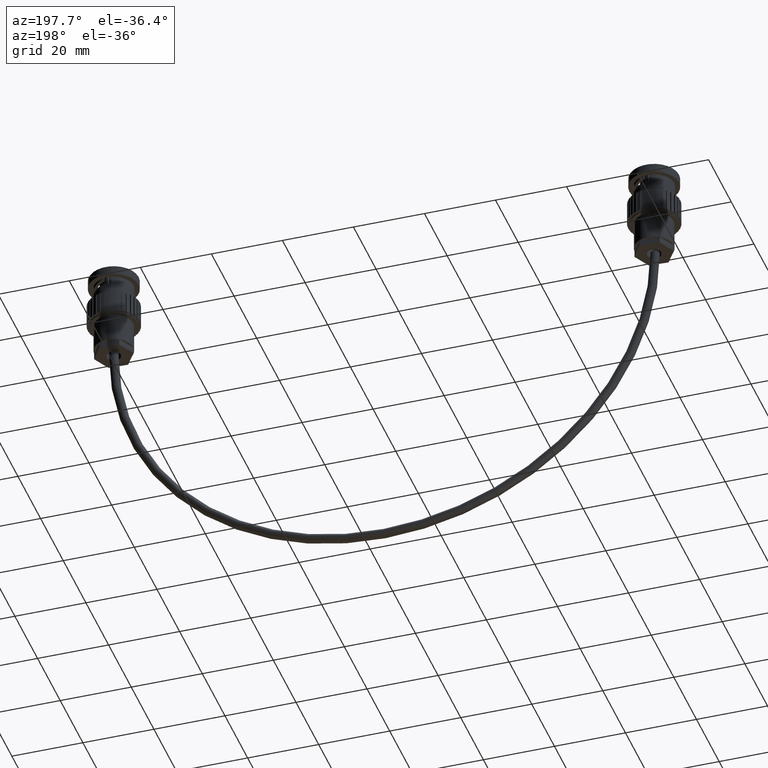
[diagram: clean part render]
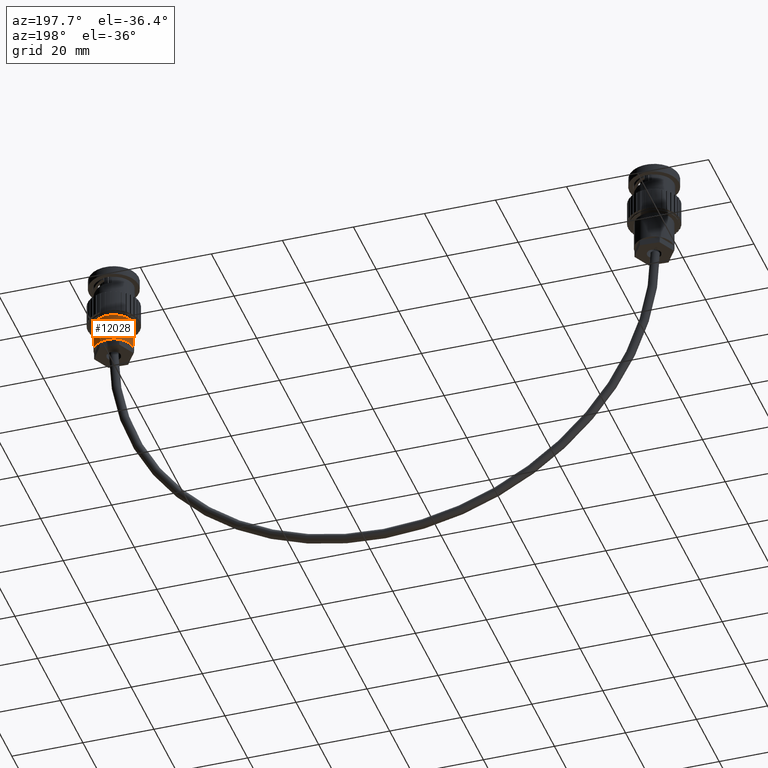
[diagram: same view with one face highlighted and labeled with its STEP entity id]
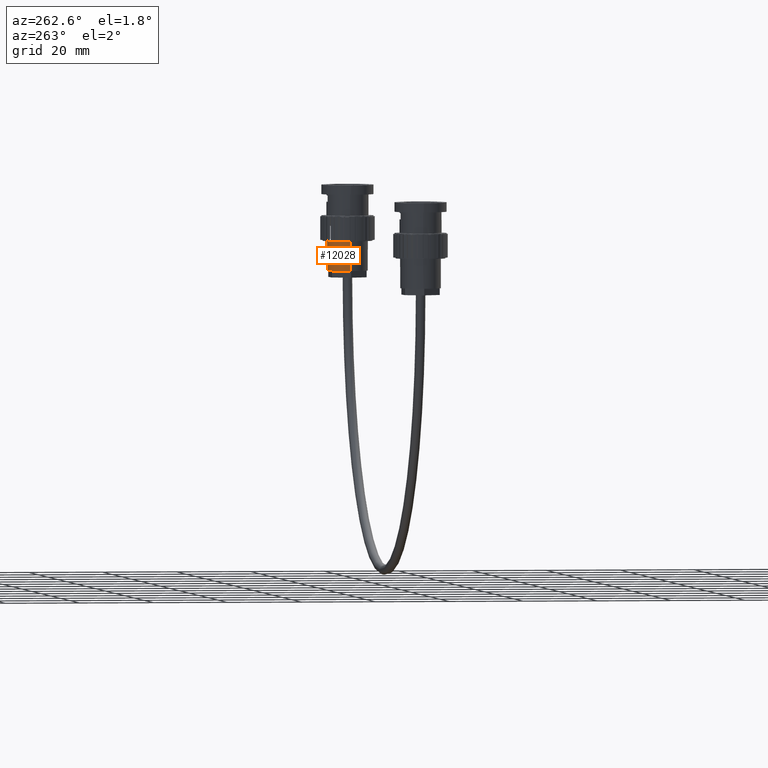
[diagram: same view with one face highlighted and labeled with its STEP entity id]
A machine part, auxiliary view. The second image highlights one B-rep face of the part: STEP entity #12028.
A second angle (auxiliary view) of the same face is appended — the face is thin or edge-on in the first view.
In plain terms, the highlighted cylindrical surface (edge-blend (fillet) strip) has radius 5.461 mm, axis along (-0, -0, 1).
Its self-contained STEP definition (entity closure, byte-faithful):
#1075 = ORIENTED_EDGE ( 'NONE', *, *, #12566, .T. ) ;
#1076 = ORIENTED_EDGE ( 'NONE', *, *, #12567, .T. ) ;
#1077 = ORIENTED_EDGE ( 'NONE', *, *, #12568, .F. ) ;
#1078 = ORIENTED_EDGE ( 'NONE', *, *, #12569, .F. ) ;
#1079 = ORIENTED_EDGE ( 'NONE', *, *, #12570, .T. ) ;
#1080 = ORIENTED_EDGE ( 'NONE', *, *, #12571, .T. ) ;
#1081 = ORIENTED_EDGE ( 'NONE', *, *, #12572, .T. ) ;
#2318 = AXIS2_PLACEMENT_3D ( 'NONE', #16121, #16122, #16123 ) ;
#2322 = AXIS2_PLACEMENT_3D ( 'NONE', #16124, #16125, #16126 ) ;
#2323 = AXIS2_PLACEMENT_3D ( 'NONE', #16127, #16128, #16129 ) ;
#2324 = AXIS2_PLACEMENT_3D ( 'NONE', #16131, #16132, #16133 ) ;
#2325 = AXIS2_PLACEMENT_3D ( 'NONE', #16135, #16136, #16137 ) ;
#4045 = EDGE_LOOP ( 'NONE', ( #1075, #1076, #1077, #1078, #1079, #1080, #1081 ) ) ;
#5290 = CARTESIAN_POINT ( 'NONE',  ( 6.205136485393062200, 0.0000000000000000000, -0.9079046006083559800 ) ) ;
#5307 = CARTESIAN_POINT ( 'NONE',  ( 5.775136485393062500, 2.632990618166812200E-017, -0.9079046006083559800 ) ) ;
#5391 = CARTESIAN_POINT ( 'NONE',  ( 5.775136485393062500, 2.632990618166812200E-017, -0.5929046006083559300 ) ) ;
#5393 = CARTESIAN_POINT ( 'NONE',  ( 6.204834602384025300, 0.01138940562694254100, -0.9079046006083559800 ) ) ;
#5394 = CARTESIAN_POINT ( 'NONE',  ( 6.087622029281605200, 0.1916287262723281300, -0.9079046006083559800 ) ) ;
#5470 = CARTESIAN_POINT ( 'NONE',  ( 6.205136485393062200, 0.0000000000000000000, -0.5929046006083559300 ) ) ;
#5489 = CARTESIAN_POINT ( 'NONE',  ( 5.872923912290643100, 0.1802393206453856400, -0.9079046006083559800 ) ) ;
#8587 = FACE_OUTER_BOUND ( 'NONE', #4045, .T. ) ;
#8591 = CYLINDRICAL_SURFACE ( 'NONE', #9110, 0.2149999999999997500 ) ;
#9110 = AXIS2_PLACEMENT_3D ( 'NONE', #10968, #10964, #10953 ) ;
#10953 = DIRECTION ( 'NONE',  ( 1.000000000000000000, 0.0000000000000000000, 0.0000000000000000000 ) ) ;
#10964 = DIRECTION ( 'NONE',  ( -0.0000000000000000000, -0.0000000000000000000, 1.000000000000000000 ) ) ;
#10968 = CARTESIAN_POINT ( 'NONE',  ( 5.990136485393062300, 0.0000000000000000000, 0.0000000000000000000 ) ) ;
#12028 = ADVANCED_FACE ( 'NONE', ( #8587 ), #8591, .T. ) ;
#12566 = EDGE_CURVE ( 'NONE', #17213, #17031, #14393, .T. ) ;
#12567 = EDGE_CURVE ( 'NONE', #17031, #17115, #14398, .T. ) ;
#12568 = EDGE_CURVE ( 'NONE', #17194, #17115, #14403, .T. ) ;
#12569 = EDGE_CURVE ( 'NONE', #17014, #17194, #14405, .T. ) ;
#12570 = EDGE_CURVE ( 'NONE', #17014, #17117, #14406, .T. ) ;
#12571 = EDGE_CURVE ( 'NONE', #17117, #17118, #14408, .T. ) ;
#12572 = EDGE_CURVE ( 'NONE', #17118, #17213, #14409, .T. ) ;
#14393 = CIRCLE ( 'NONE', #2318, 0.2149999999999997500 ) ;
#14398 = LINE ( 'NONE', #16120, #14404 ) ;
#14403 = CIRCLE ( 'NONE', #2322, 0.2149999999999997500 ) ;
#14404 = VECTOR ( 'NONE', #16114, 39.37007874015748100 ) ;
#14405 = LINE ( 'NONE', #16119, #14407 ) ;
#14406 = CIRCLE ( 'NONE', #2323, 0.2149999999999997500 ) ;
#14407 = VECTOR ( 'NONE', #16118, 39.37007874015748100 ) ;
#14408 = CIRCLE ( 'NONE', #2324, 0.2149999999999997500 ) ;
#14409 = CIRCLE ( 'NONE', #2325, 0.2149999999999997500 ) ;
#16114 = DIRECTION ( 'NONE',  ( -0.0000000000000000000, -0.0000000000000000000, 1.000000000000000000 ) ) ;
#16118 = DIRECTION ( 'NONE',  ( -0.0000000000000000000, -0.0000000000000000000, 1.000000000000000000 ) ) ;
#16119 = CARTESIAN_POINT ( 'NONE',  ( 6.205136485393062200, 0.0000000000000000000, 0.0000000000000000000 ) ) ;
#16120 = CARTESIAN_POINT ( 'NONE',  ( 5.775136485393062500, 2.632990618166809100E-017, 0.0000000000000000000 ) ) ;
#16121 = CARTESIAN_POINT ( 'NONE',  ( 5.990136485393062300, 0.0000000000000000000, -0.9079046006083559800 ) ) ;
#16122 = DIRECTION ( 'NONE',  ( -0.0000000000000000000, -0.0000000000000000000, 1.000000000000000000 ) ) ;
#16123 = DIRECTION ( 'NONE',  ( 1.000000000000000000, 0.0000000000000000000, 0.0000000000000000000 ) ) ;
#16124 = CARTESIAN_POINT ( 'NONE',  ( 5.990136485393062300, 0.0000000000000000000, -0.5929046006083559300 ) ) ;
#16125 = DIRECTION ( 'NONE',  ( -0.0000000000000000000, -0.0000000000000000000, 1.000000000000000000 ) ) ;
#16126 = DIRECTION ( 'NONE',  ( 1.000000000000000000, 0.0000000000000000000, 0.0000000000000000000 ) ) ;
#16127 = CARTESIAN_POINT ( 'NONE',  ( 5.990136485393062300, 0.0000000000000000000, -0.9079046006083559800 ) ) ;
#16128 = DIRECTION ( 'NONE',  ( -0.0000000000000000000, -0.0000000000000000000, 1.000000000000000000 ) ) ;
#16129 = DIRECTION ( 'NONE',  ( 1.000000000000000000, 0.0000000000000000000, 0.0000000000000000000 ) ) ;
#16131 = CARTESIAN_POINT ( 'NONE',  ( 5.990136485393062300, 0.0000000000000000000, -0.9079046006083559800 ) ) ;
#16132 = DIRECTION ( 'NONE',  ( -0.0000000000000000000, -0.0000000000000000000, 1.000000000000000000 ) ) ;
#16133 = DIRECTION ( 'NONE',  ( 1.000000000000000000, 0.0000000000000000000, 0.0000000000000000000 ) ) ;
#16135 = CARTESIAN_POINT ( 'NONE',  ( 5.990136485393062300, 0.0000000000000000000, -0.9079046006083559800 ) ) ;
#16136 = DIRECTION ( 'NONE',  ( -0.0000000000000000000, -0.0000000000000000000, 1.000000000000000000 ) ) ;
#16137 = DIRECTION ( 'NONE',  ( 1.000000000000000000, 0.0000000000000000000, 0.0000000000000000000 ) ) ;
#17014 = VERTEX_POINT ( 'NONE', #5290 ) ;
#17031 = VERTEX_POINT ( 'NONE', #5307 ) ;
#17115 = VERTEX_POINT ( 'NONE', #5391 ) ;
#17117 = VERTEX_POINT ( 'NONE', #5393 ) ;
#17118 = VERTEX_POINT ( 'NONE', #5394 ) ;
#17194 = VERTEX_POINT ( 'NONE', #5470 ) ;
#17213 = VERTEX_POINT ( 'NONE', #5489 ) ;